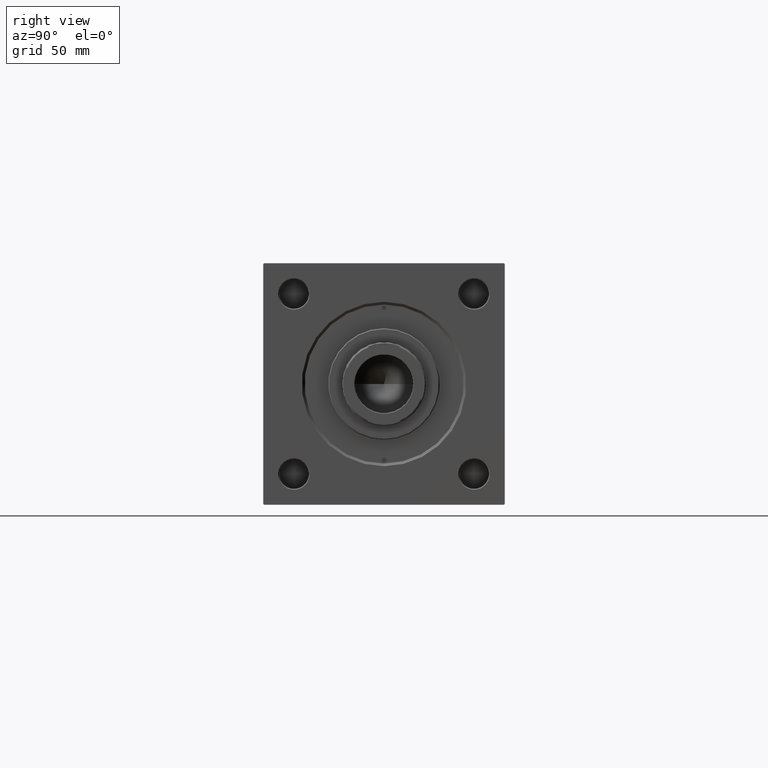
[diagram: clean part render]
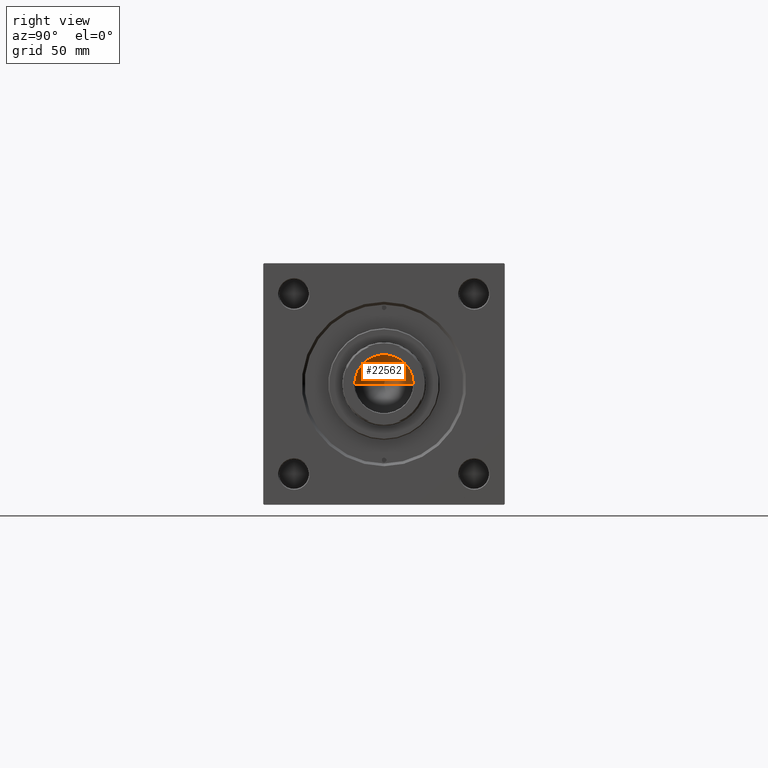
[diagram: same view with one face highlighted and labeled with its STEP entity id]
A machine part, right view. The second image highlights one B-rep face of the part: STEP entity #22562.
In plain terms, the highlighted conical surface has half-angle 59 deg.
Its self-contained STEP definition (entity closure, byte-faithful):
#1105 = DIRECTION ( 'NONE',  ( 0.8571673007021112234, 0.000000000000000000, 0.5150380749100560429 ) ) ;
#1225 = ORIENTED_EDGE ( 'NONE', *, *, #22105, .T. ) ;
#1513 = DIRECTION ( 'NONE',  ( -0.000000000000000000, -0.000000000000000000, 1.000000000000000000 ) ) ;
#3202 = ORIENTED_EDGE ( 'NONE', *, *, #27862, .T. ) ;
#6224 = CONICAL_SURFACE ( 'NONE', #49728, 15.74999999999998934, 1.029744258676652313 ) ;
#6413 = AXIS2_PLACEMENT_3D ( 'NONE', #11337, #50648, #6733 ) ;
#6733 = DIRECTION ( 'NONE',  ( 1.000000000000000000, 0.000000000000000000, 0.000000000000000000 ) ) ;
#9222 = FACE_OUTER_BOUND ( 'NONE', #39748, .T. ) ;
#9855 = VECTOR ( 'NONE', #1105, 1000.000000000000000 ) ;
#9924 = VERTEX_POINT ( 'NONE', #35085 ) ;
#11337 = CARTESIAN_POINT ( 'NONE',  ( 0.000000000000000000, 0.000000000000000000, 228.0000000000000284 ) ) ;
#15481 = CARTESIAN_POINT ( 'NONE',  ( -15.74999999999998934, 1.928818708657080161E-15, 228.0000000000000284 ) ) ;
#16032 = CARTESIAN_POINT ( 'NONE',  ( 15.74999999999998934, 0.000000000000000000, 228.0000000000000284 ) ) ;
#16949 = DIRECTION ( 'NONE',  ( 1.000000000000000000, 0.000000000000000000, 0.000000000000000000 ) ) ;
#19886 = LINE ( 'NONE', #16032, #9855 ) ;
#21395 = ORIENTED_EDGE ( 'NONE', *, *, #39968, .F. ) ;
#22105 = EDGE_CURVE ( 'NONE', #9924, #32776, #23445, .T. ) ;
#22562 = ADVANCED_FACE ( 'NONE', ( #9222 ), #6224, .F. ) ;
#23445 = LINE ( 'NONE', #15481, #24268 ) ;
#24268 = VECTOR ( 'NONE', #34998, 1000.000000000000000 ) ;
#26123 = CARTESIAN_POINT ( 'NONE',  ( 0.000000000000000000, 0.000000000000000000, 228.0000000000000284 ) ) ;
#26530 = CARTESIAN_POINT ( 'NONE',  ( 15.74999999999998934, 0.000000000000000000, 228.0000000000000284 ) ) ;
#27862 = EDGE_CURVE ( 'NONE', #32776, #38535, #40906, .T. ) ;
#32776 = VERTEX_POINT ( 'NONE', #46619 ) ;
#34998 = DIRECTION ( 'NONE',  ( -0.8571673007021112234, 1.049727191138617340E-16, 0.5150380749100560429 ) ) ;
#35085 = CARTESIAN_POINT ( 'NONE',  ( -1.584115414415908206E-14, 0.000000000000000000, 218.5364452503159214 ) ) ;
#38535 = VERTEX_POINT ( 'NONE', #26530 ) ;
#39748 = EDGE_LOOP ( 'NONE', ( #21395, #1225, #3202 ) ) ;
#39968 = EDGE_CURVE ( 'NONE', #9924, #38535, #19886, .T. ) ;
#40906 = CIRCLE ( 'NONE', #6413, 15.74999999999998934 ) ;
#46619 = CARTESIAN_POINT ( 'NONE',  ( -15.74999999999998934, 1.928818708657080161E-15, 228.0000000000000284 ) ) ;
#49728 = AXIS2_PLACEMENT_3D ( 'NONE', #26123, #1513, #16949 ) ;
#50648 = DIRECTION ( 'NONE',  ( -0.000000000000000000, -0.000000000000000000, 1.000000000000000000 ) ) ;